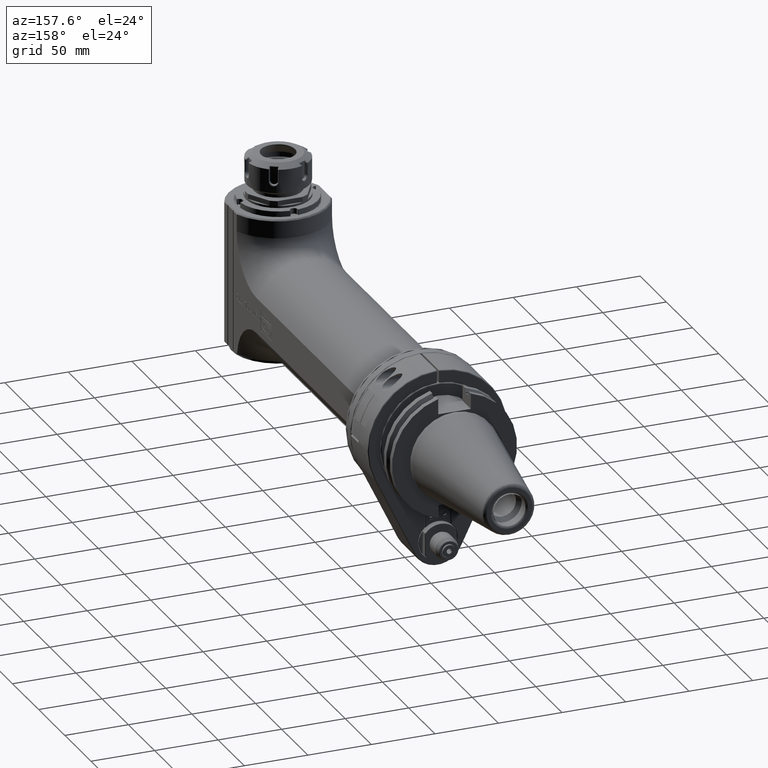
[diagram: clean part render]
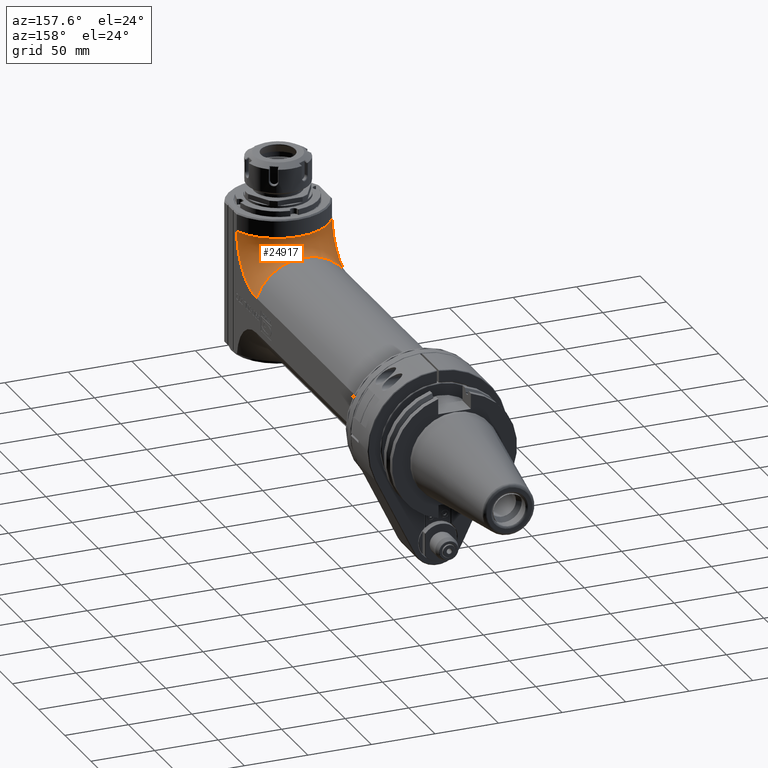
[diagram: same view with one face highlighted and labeled with its STEP entity id]
A machine part, auxiliary view. The second image highlights one B-rep face of the part: STEP entity #24917.
In plain terms, the highlighted toroidal blend (fillet) surface has major radius 51.5 mm and minor (blend) radius 40 mm.
Its self-contained STEP definition (entity closure, byte-faithful):
#843=TOROIDAL_SURFACE('',#26636,51.5,40.);
#6254=FACE_OUTER_BOUND('',#7745,.T.);
#7745=EDGE_LOOP('',(#17365,#17366,#17367,#17368));
#9234=CIRCLE('',#26478,37.58058909292);
#9316=CIRCLE('',#26633,37.58058909292);
#9317=CIRCLE('',#26635,40.);
#9318=CIRCLE('',#26637,40.);
#10201=VERTEX_POINT('',#37188);
#10202=VERTEX_POINT('',#37190);
#10311=VERTEX_POINT('',#37698);
#10312=VERTEX_POINT('',#37700);
#12777=EDGE_CURVE('',#10202,#10201,#9234,.T.);
#12952=EDGE_CURVE('',#10311,#10312,#9316,.T.);
#13203=EDGE_CURVE('',#10201,#10312,#9317,.T.);
#13204=EDGE_CURVE('',#10311,#10202,#9318,.T.);
#17365=ORIENTED_EDGE('',*,*,#12952,.F.);
#17366=ORIENTED_EDGE('',*,*,#13204,.T.);
#17367=ORIENTED_EDGE('',*,*,#12777,.T.);
#17368=ORIENTED_EDGE('',*,*,#13203,.T.);
#24917=ADVANCED_FACE('',(#6254),#843,.T.);
#26478=AXIS2_PLACEMENT_3D('',#37191,#29122,#29123);
#26633=AXIS2_PLACEMENT_3D('',#37701,#29517,#29518);
#26635=AXIS2_PLACEMENT_3D('',#38202,#29771,#29772);
#26636=AXIS2_PLACEMENT_3D('',#38203,#29773,#29774);
#26637=AXIS2_PLACEMENT_3D('',#38204,#29775,#29776);
#29122=DIRECTION('center_axis',(-1.,0.,0.));
#29123=DIRECTION('ref_axis',(0.,-2.117603484298E-14,-1.));
#29517=DIRECTION('center_axis',(-1.,0.,0.));
#29518=DIRECTION('ref_axis',(0.,0.,-1.));
#29771=DIRECTION('center_axis',(0.,0.,-1.));
#29772=DIRECTION('ref_axis',(-0.937499999999992,0.347985272676897,0.));
#29773=DIRECTION('center_axis',(-1.,0.,0.));
#29774=DIRECTION('ref_axis',(0.,1.,0.));
#29775=DIRECTION('center_axis',(0.,-1.,0.));
#29776=DIRECTION('ref_axis',(0.937499999999992,0.,0.347985272676897));
#37188=CARTESIAN_POINT('',(-37.5,11.91941090708,51.5));
#37190=CARTESIAN_POINT('',(-37.5,49.5,13.91941090708));
#37191=CARTESIAN_POINT('Origin',(-37.5,49.5,51.5));
#37698=CARTESIAN_POINT('',(37.5,49.5,13.91941090708));
#37700=CARTESIAN_POINT('',(37.5,11.91941090708,51.5));
#37701=CARTESIAN_POINT('Origin',(37.5,49.5,51.5));
#38202=CARTESIAN_POINT('Origin',(0.,-2.,51.5));
#38203=CARTESIAN_POINT('Origin',(0.,49.5,51.5));
#38204=CARTESIAN_POINT('Origin',(-1.515621780731E-14,49.5,0.));